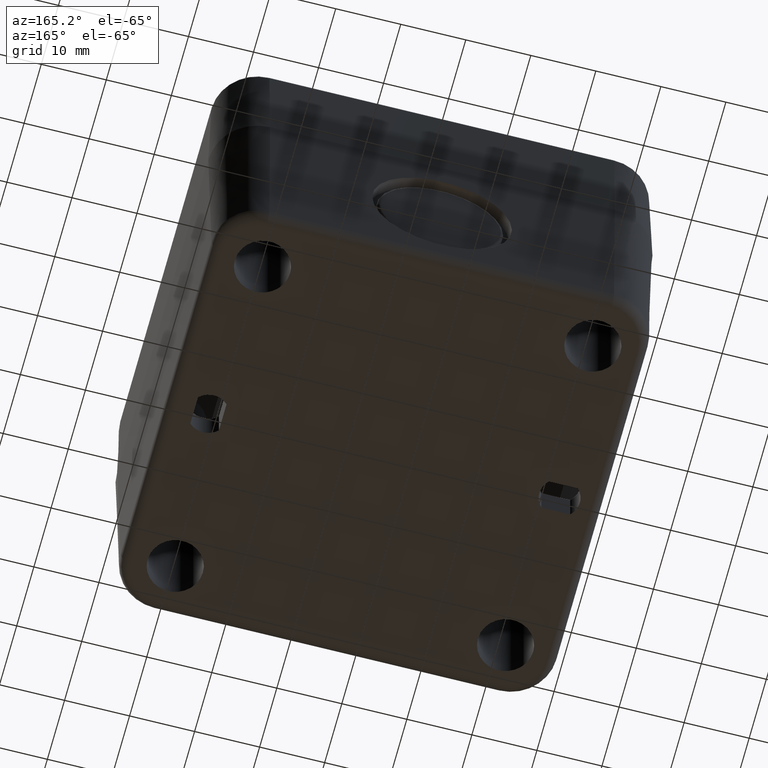
[diagram: clean part render]
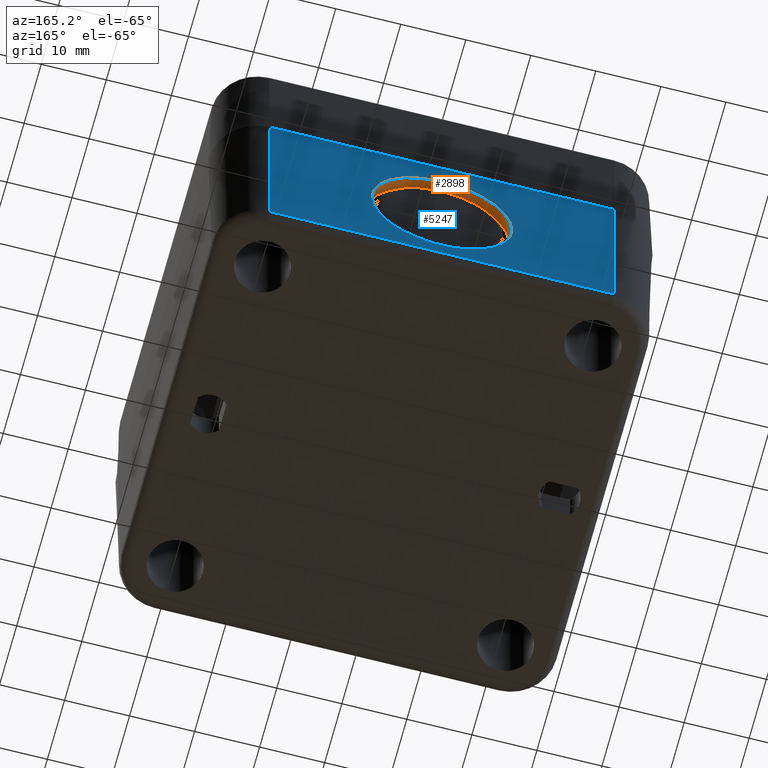
[diagram: same view with the hole feature highlighted: cylindrical wall and planar end face, labeled with their STEP entity ids]
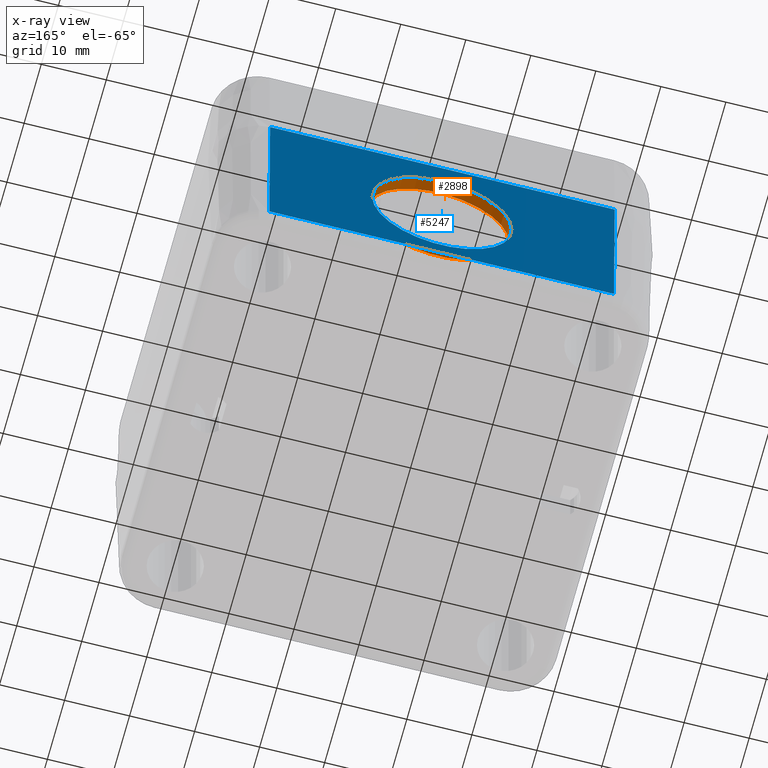
[diagram: x-ray of the same camera — body ghosted, the hole faces saturated]
A machine part, auxiliary view. The highlighted faces form one hole feature of diameter 21.5 mm: the cylindrical wall (entity #2898, orange) and its adjacent planar end face (entity #5247, blue) — they share a circular edge in the B-rep.
The next image is the same camera in x-ray (body ghosted, the hole faces saturated) — the bore reads through the body.
Wall:
#2871=CARTESIAN_POINT('',(-15.872549297178512,43.939500552970131,15.300169355130679));
#2872=DIRECTION('',(0.0,-0.999847695156391,0.017452406437283));
#2873=DIRECTION('',(-1.0,0.0,0.0));
#2874=AXIS2_PLACEMENT_3D('',#2871,#2872,#2873);
#2875=CYLINDRICAL_SURFACE('',#2874,10.750000000000000);
#2876=CARTESIAN_POINT('',(-5.122549297178514,42.039789932172987,15.333328927361515));
#2877=VERTEX_POINT('',#2876);
#2878=CARTESIAN_POINT('',(-15.872549297178512,42.039789932172987,15.333328927361517));
#2879=DIRECTION('',(0.0,0.999847695156391,-0.017452406437283));
#2880=DIRECTION('',(-1.0,0.0,0.0));
#2881=AXIS2_PLACEMENT_3D('',#2878,#2879,#2880);
#2882=CIRCLE('',#2881,10.750000000000000);
#2883=EDGE_CURVE('',#2877,#2877,#2882,.T.);
#2884=ORIENTED_EDGE('',*,*,#2883,.F.);
#2885=EDGE_LOOP('',(#2884));
#2886=FACE_OUTER_BOUND('',#2885,.T.);
#2887=CARTESIAN_POINT('',(-5.122549297178514,43.939500552970131,15.300169355130677));
#2888=VERTEX_POINT('',#2887);
#2889=CARTESIAN_POINT('',(-15.872549297178512,43.939500552970131,15.300169355130679));
#2890=DIRECTION('',(0.0,-0.999847695156391,0.017452406437283));
#2891=DIRECTION('',(-1.0,0.0,0.0));
#2892=AXIS2_PLACEMENT_3D('',#2889,#2890,#2891);
#2893=CIRCLE('',#2892,10.750000000000000);
#2894=EDGE_CURVE('',#2888,#2888,#2893,.T.);
#2895=ORIENTED_EDGE('',*,*,#2894,.F.);
#2896=EDGE_LOOP('',(#2895));
#2897=FACE_BOUND('',#2896,.T.);
#2898=ADVANCED_FACE('',(#2886,#2897),#2875,.F.);
End face:
#190=CARTESIAN_POINT('',(10.627450702821491,43.706735967545008,1.965095187125425));
#191=VERTEX_POINT('',#190);
#256=CARTESIAN_POINT('',(-42.372549297178509,43.706735967545001,1.965095187125433));
#257=VERTEX_POINT('',#256);
#265=CARTESIAN_POINT('',(-42.372549297178509,43.706735967545001,1.965095187125433));
#266=DIRECTION('',(1.0,0.0,0.0));
#267=VECTOR('',#266,53.0);
#268=LINE('',#265,#267);
#269=EDGE_CURVE('',#257,#191,#268,.T.);
#2887=CARTESIAN_POINT('',(-5.122549297178514,43.939500552970131,15.300169355130677));
#2888=VERTEX_POINT('',#2887);
#2889=CARTESIAN_POINT('',(-15.872549297178512,43.939500552970131,15.300169355130679));
#2890=DIRECTION('',(0.0,-0.999847695156391,0.017452406437283));
#2891=DIRECTION('',(-1.0,0.0,0.0));
#2892=AXIS2_PLACEMENT_3D('',#2889,#2890,#2891);
#2893=CIRCLE('',#2892,10.750000000000000);
#2894=EDGE_CURVE('',#2888,#2888,#2893,.T.);
#5214=CARTESIAN_POINT('',(-42.372549297178509,43.672435103463599,0.0));
#5215=DIRECTION('',(-1.675553E-016,0.999847695156391,-0.017452406437283));
#5216=DIRECTION('',(-1.0,0.0,0.0));
#5217=AXIS2_PLACEMENT_3D('',#5214,#5215,#5216);
#5218=PLANE('',#5217);
#5219=ORIENTED_EDGE('',*,*,#269,.F.);
#5220=CARTESIAN_POINT('',(-42.372549297178509,44.206560090267061,30.600000000000005));
#5221=VERTEX_POINT('',#5220);
#5222=CARTESIAN_POINT('',(-42.372549297178509,43.706735967545001,1.965095187125433));
#5223=DIRECTION('',(0.0,0.017452406437284,0.999847695156391));
#5224=VECTOR('',#5223,28.639266711912203);
#5225=LINE('',#5222,#5224);
#5226=EDGE_CURVE('',#257,#5221,#5225,.T.);
#5227=ORIENTED_EDGE('',*,*,#5226,.T.);
#5228=CARTESIAN_POINT('',(10.627450702821491,44.206560090267068,30.600000000000005));
#5229=VERTEX_POINT('',#5228);
#5230=CARTESIAN_POINT('',(-42.372549297178509,44.206560090267061,30.600000000000005));
#5231=DIRECTION('',(1.0,0.0,0.0));
#5232=VECTOR('',#5231,53.0);
#5233=LINE('',#5230,#5232);
#5234=EDGE_CURVE('',#5221,#5229,#5233,.T.);
#5235=ORIENTED_EDGE('',*,*,#5234,.T.);
#5236=CARTESIAN_POINT('',(10.627450702821491,43.706735967545008,1.965095187125425));
#5237=DIRECTION('',(0.0,0.017452406437284,0.999847695156391));
#5238=VECTOR('',#5237,28.639266711912207);
#5239=LINE('',#5236,#5238);
#5240=EDGE_CURVE('',#191,#5229,#5239,.T.);
#5241=ORIENTED_EDGE('',*,*,#5240,.F.);
#5242=EDGE_LOOP('',(#5219,#5227,#5235,#5241));
#5243=FACE_OUTER_BOUND('',#5242,.T.);
#5244=ORIENTED_EDGE('',*,*,#2894,.T.);
#5245=EDGE_LOOP('',(#5244));
#5246=FACE_BOUND('',#5245,.T.);
#5247=ADVANCED_FACE('',(#5243,#5246),#5218,.T.);